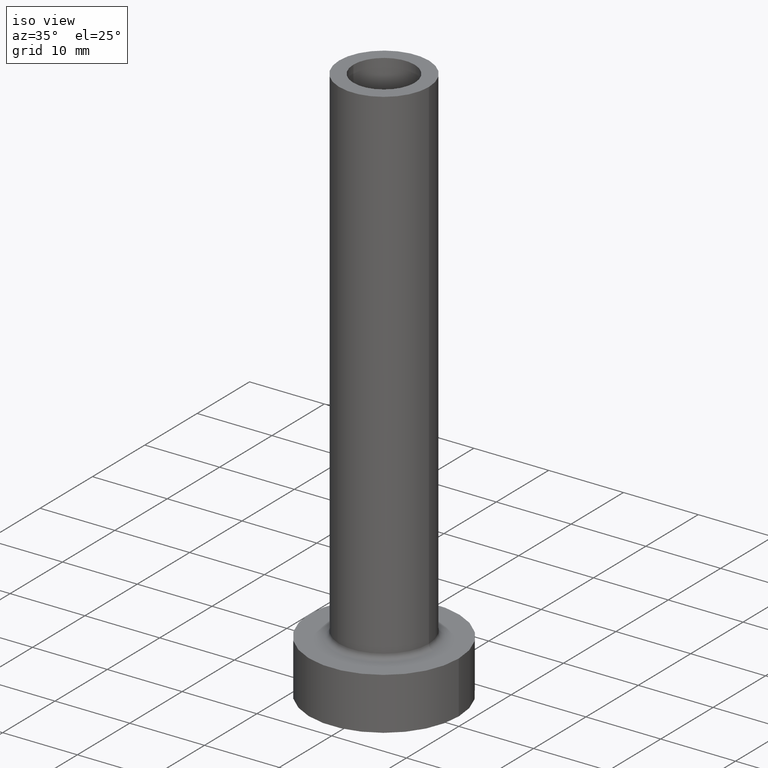
[diagram: clean part render]
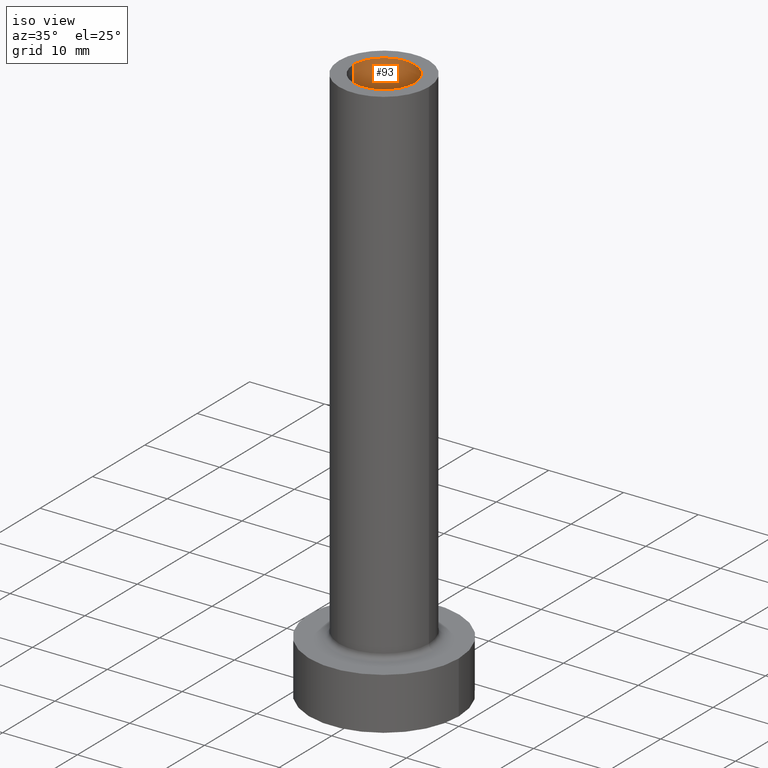
[diagram: same view with one face highlighted and labeled with its STEP entity id]
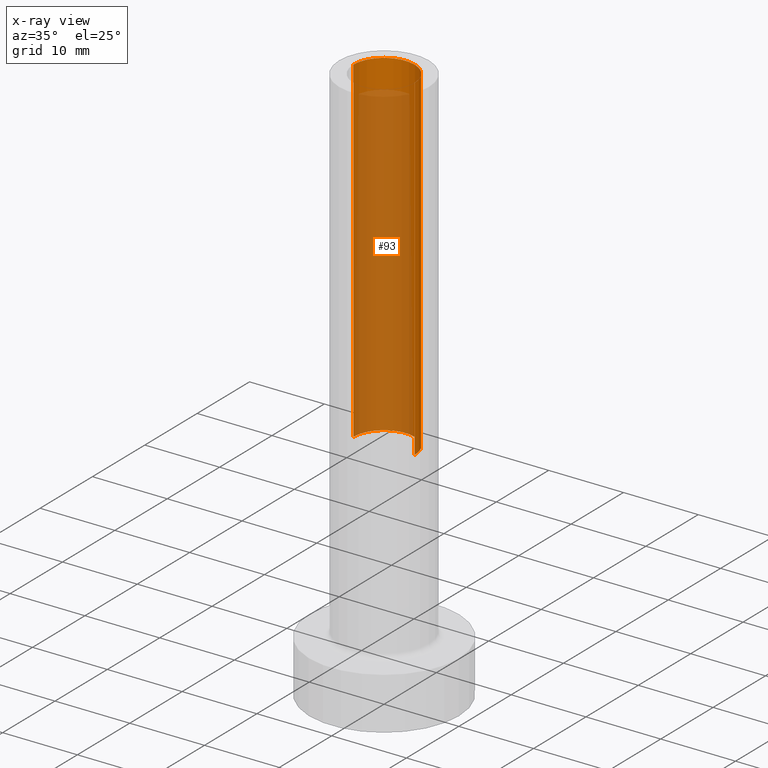
[diagram: x-ray of the same camera — body ghosted, the highlighted face saturated]
A machine part, iso view. The second image highlights one B-rep face of the part: STEP entity #93.
The next image is the same camera in x-ray: the body ghosted, the highlighted face saturated — about 74% of this face is hidden behind the body in this view.
In plain terms, the highlighted cylindrical surface (partial cylindrical patch) has radius 4.1 mm, axis along (0, 0, -1).
Its self-contained STEP definition (entity closure, byte-faithful):
#8 = LINE ( 'NONE', #440, #222 ) ;
#9 = VECTOR ( 'NONE', #53, 1000.000000000000000 ) ;
#30 = VERTEX_POINT ( 'NONE', #77 ) ;
#33 = EDGE_LOOP ( 'NONE', ( #449, #130, #273, #107 ) ) ;
#50 = VERTEX_POINT ( 'NONE', #291 ) ;
#53 = DIRECTION ( 'NONE',  ( 0.000000000000000000, 0.000000000000000000, -1.000000000000000000 ) ) ;
#63 = DIRECTION ( 'NONE',  ( 0.000000000000000000, 0.000000000000000000, 1.000000000000000000 ) ) ;
#67 = CARTESIAN_POINT ( 'NONE',  ( 0.000000000000000000, 0.000000000000000000, 30.00000000000001421 ) ) ;
#77 = CARTESIAN_POINT ( 'NONE',  ( 4.099999999999999645, 5.021051876504146399E-16, 75.00000000000001421 ) ) ;
#93 = ADVANCED_FACE ( 'NONE', ( #181 ), #387, .F. ) ;
#95 = DIRECTION ( 'NONE',  ( 0.000000000000000000, 0.000000000000000000, 1.000000000000000000 ) ) ;
#107 = ORIENTED_EDGE ( 'NONE', *, *, #418, .F. ) ;
#130 = ORIENTED_EDGE ( 'NONE', *, *, #423, .T. ) ;
#139 = DIRECTION ( 'NONE',  ( 1.000000000000000000, 0.000000000000000000, 0.000000000000000000 ) ) ;
#146 = VERTEX_POINT ( 'NONE', #318 ) ;
#165 = CARTESIAN_POINT ( 'NONE',  ( 4.099999999999999645, 5.021051876504146399E-16, 75.00000000000001421 ) ) ;
#181 = FACE_OUTER_BOUND ( 'NONE', #33, .T. ) ;
#184 = EDGE_CURVE ( 'NONE', #258, #50, #8, .T. ) ;
#207 = CARTESIAN_POINT ( 'NONE',  ( 0.000000000000000000, 0.000000000000000000, 75.00000000000001421 ) ) ;
#222 = VECTOR ( 'NONE', #404, 1000.000000000000000 ) ;
#252 = DIRECTION ( 'NONE',  ( -1.000000000000000000, 0.000000000000000000, 0.000000000000000000 ) ) ;
#257 = AXIS2_PLACEMENT_3D ( 'NONE', #67, #63, #139 ) ;
#258 = VERTEX_POINT ( 'NONE', #443 ) ;
#264 = LINE ( 'NONE', #165, #9 ) ;
#270 = EDGE_CURVE ( 'NONE', #30, #146, #264, .T. ) ;
#273 = ORIENTED_EDGE ( 'NONE', *, *, #184, .T. ) ;
#277 = CARTESIAN_POINT ( 'NONE',  ( 0.000000000000000000, 0.000000000000000000, 75.00000000000001421 ) ) ;
#291 = CARTESIAN_POINT ( 'NONE',  ( -4.099999999999999645, 0.000000000000000000, 30.00000000000001421 ) ) ;
#297 = CIRCLE ( 'NONE', #363, 4.099999999999999645 ) ;
#318 = CARTESIAN_POINT ( 'NONE',  ( 4.099999999999999645, 5.021051876504146399E-16, 30.00000000000001421 ) ) ;
#363 = AXIS2_PLACEMENT_3D ( 'NONE', #207, #95, #391 ) ;
#386 = CIRCLE ( 'NONE', #257, 4.099999999999999645 ) ;
#387 = CYLINDRICAL_SURFACE ( 'NONE', #400, 4.099999999999999645 ) ;
#391 = DIRECTION ( 'NONE',  ( 1.000000000000000000, 0.000000000000000000, 0.000000000000000000 ) ) ;
#400 = AXIS2_PLACEMENT_3D ( 'NONE', #277, #422, #252 ) ;
#404 = DIRECTION ( 'NONE',  ( 0.000000000000000000, 0.000000000000000000, -1.000000000000000000 ) ) ;
#418 = EDGE_CURVE ( 'NONE', #146, #50, #386, .T. ) ;
#422 = DIRECTION ( 'NONE',  ( 0.000000000000000000, 0.000000000000000000, -1.000000000000000000 ) ) ;
#423 = EDGE_CURVE ( 'NONE', #30, #258, #297, .T. ) ;
#440 = CARTESIAN_POINT ( 'NONE',  ( -4.099999999999999645, 0.000000000000000000, 75.00000000000001421 ) ) ;
#443 = CARTESIAN_POINT ( 'NONE',  ( -4.099999999999999645, 0.000000000000000000, 75.00000000000001421 ) ) ;
#449 = ORIENTED_EDGE ( 'NONE', *, *, #270, .F. ) ;